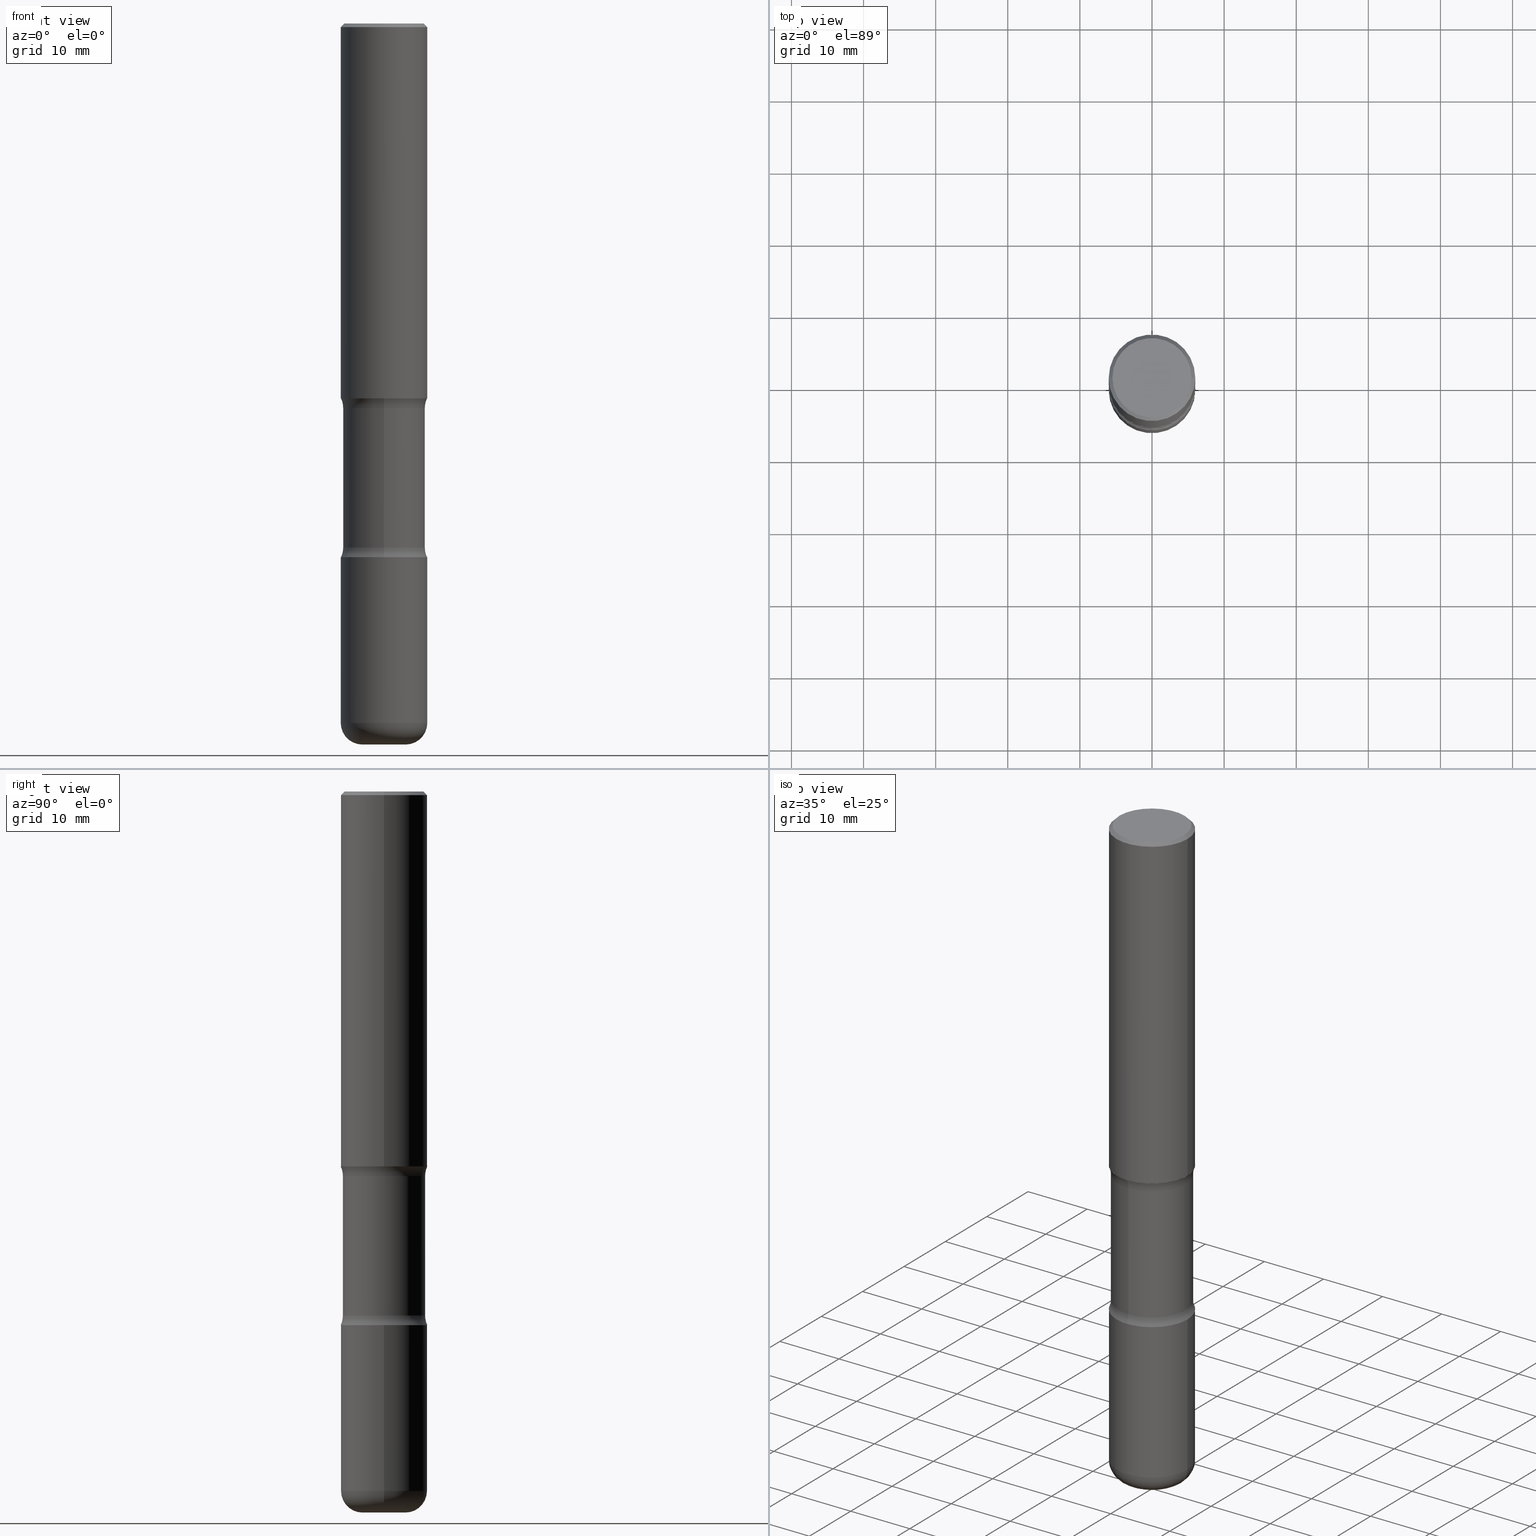
[diagram: canonical four-view strip — front | top / right | iso, engineering-drawing reading convention]
A machine part, canonical four-view strip (front | top / right | iso — engineering-drawing reading convention). The complete STEP part file that produces these views, byte-faithful:
ISO-10303-21;
HEADER;
FILE_DESCRIPTION (( 'STEP AP203' ),
    '1' );
FILE_NAME ('47713.STEP',
    '2024-03-02T07:42:48',
    ( '' ),
    ( '' ),
    'SwSTEP 2.0',
    'SolidWorks 2023',
    '' );
FILE_SCHEMA (( 'CONFIG_CONTROL_DESIGN' ));
ENDSEC;

DATA;
#1 = CC_DESIGN_PERSON_AND_ORGANIZATION_ASSIGNMENT ( #215, #86, ( #98 ) ) ;
#2 = FACE_OUTER_BOUND ( 'NONE', #433, .T. ) ;
#3 = APPLICATION_PROTOCOL_DEFINITION ( 'international standard', 'config_control_design', 1994, #512 ) ;
#4 = DIRECTION ( 'NONE',  ( 1.000000000000000000, -6.982962677686266711E-15, 4.876176775795936353E-29 ) ) ;
#5 = CYLINDRICAL_SURFACE ( 'NONE', #314, 0.2361999999999999933 ) ;
#6 = VERTEX_POINT ( 'NONE', #87 ) ;
#7 = VECTOR ( 'NONE', #421, 39.37007874015748143 ) ;
#8 = APPROVAL_ROLE ( '' ) ;
#9 = CARTESIAN_POINT ( 'NONE',  ( 5.006363740022212241E-29, -7.147760596879688202E-15, -2.047200000000000131 ) ) ;
#10 = VERTEX_POINT ( 'NONE', #490 ) ;
#11 = DATE_TIME_ROLE ( 'creation_date' ) ;
#12 = EDGE_CURVE ( 'NONE', #464, #528, #516, .T. ) ;
#13 = ORIENTED_EDGE ( 'NONE', *, *, #395, .T. ) ;
#14 = PERSON_AND_ORGANIZATION ( #96, #503 ) ;
#15 = AXIS2_PLACEMENT_3D ( 'NONE', #34, #158, #553 ) ;
#16 = AXIS2_PLACEMENT_3D ( 'NONE', #36, #122, #550 ) ;
#17 = CARTESIAN_POINT ( 'NONE',  ( -1.579972688886713168E-15, -0.2244000000000099804, -2.860383398826404466 ) ) ;
#18 = ORIENTED_EDGE ( 'NONE', *, *, #515, .F. ) ;
#19 = ADVANCED_FACE ( 'NONE', ( #483 ), #439, .F. ) ;
#20 = CARTESIAN_POINT ( 'NONE',  ( 4.936620538380257512E-29, -7.247636831167487464E-15, -2.047200000000000131 ) ) ;
#21 = DIRECTION ( 'NONE',  ( 2.445468806185136597E-29, -3.491481338843145583E-15, -1.000000000000000000 ) ) ;
#22 = CARTESIAN_POINT ( 'NONE',  ( 6.994978375559792251E-29, -9.986975258939122984E-15, -2.860383398826405354 ) ) ;
#23 = CARTESIAN_POINT ( 'NONE',  ( 5.070539682259229331E-29, -7.426630284172150130E-15, -2.100216601173595432 ) ) ;
#24 = AXIS2_PLACEMENT_3D ( 'NONE', #186, #270, #404 ) ;
#25 = DIRECTION ( 'NONE',  ( 2.525985086076564115E-29, -3.376177443336566513E-15, -1.000000000000000000 ) ) ;
#26 = LOCAL_TIME ( 2, 42, 48.00000000000000000, #291 ) ;
#27 = ORIENTED_EDGE ( 'NONE', *, *, #472, .F. ) ;
#28 = CARTESIAN_POINT ( 'NONE',  ( 1.509716530915769534E-15, 0.2161999999999998368, -7.527240092128373149E-16 ) ) ;
#29 = EDGE_CURVE ( 'NONE', #339, #135, #155, .T. ) ;
#30 = CYLINDRICAL_SURFACE ( 'NONE', #539, 0.2243999999999999329 ) ;
#31 = DIRECTION ( 'NONE',  ( 1.000000000000000000, -6.982962677686266711E-15, 4.876176775795936353E-29 ) ) ;
#32 = VERTEX_POINT ( 'NONE', #269 ) ;
#33 = AXIS2_PLACEMENT_3D ( 'NONE', #23, #25, #530 ) ;
#34 = CARTESIAN_POINT ( 'NONE',  ( 5.006363740022212241E-29, -7.147760596879688202E-15, -2.047200000000000131 ) ) ;
#35 = EDGE_CURVE ( 'NONE', #76, #531, #405, .T. ) ;
#36 = CARTESIAN_POINT ( 'NONE',  ( -1.043851414335219820E-46, 1.490343170380447200E-32, 4.268512490100411279E-18 ) ) ;
#37 = ORIENTED_EDGE ( 'NONE', *, *, #104, .F. ) ;
#38 = DIRECTION ( 'NONE',  ( 6.982962677686265922E-15, 1.000000000000000000, -3.469747663417773452E-15 ) ) ;
#39 = AXIS2_PLACEMENT_3D ( 'NONE', #139, #318, #359 ) ;
#40 = ORIENTED_EDGE ( 'NONE', *, *, #508, .T. ) ;
#41 = AXIS2_PLACEMENT_3D ( 'NONE', #510, #551, #241 ) ;
#42 = DATE_AND_TIME ( #130, #335 ) ;
#43 = DIRECTION ( 'NONE',  ( 2.525985086076564115E-29, -3.376177443336566513E-15, -1.000000000000000000 ) ) ;
#44 = CARTESIAN_POINT ( 'NONE',  ( 0.000000000000000000, 0.000000000000000000, 0.000000000000000000 ) ) ;
#45 = PERSON_AND_ORGANIZATION ( #96, #503 ) ;
#46 = DIRECTION ( 'NONE',  ( -2.445468806185136877E-29, 3.491481338843145188E-15, 1.000000000000000000 ) ) ;
#47 = EDGE_LOOP ( 'NONE', ( #471, #487, #245, #556 ) ) ;
#48 = CIRCLE ( 'NONE', #441, 0.2362000000000002431 ) ;
#49 = APPROVAL_PERSON_ORGANIZATION ( #520, #182, #90 ) ;
#50 = EDGE_CURVE ( 'NONE', #10, #386, #425, .T. ) ;
#51 = ORIENTED_EDGE ( 'NONE', *, *, #416, .F. ) ;
#52 = PERSON_AND_ORGANIZATION_ROLE ( 'creator' ) ;
#53 = VERTEX_POINT ( 'NONE', #326 ) ;
#54 = SHAPE_DEFINITION_REPRESENTATION ( #153, #368 ) ;
#55 = DIRECTION ( 'NONE',  ( -2.445468806185136597E-29, 3.491481338843145583E-15, 1.000000000000000000 ) ) ;
#56 = EDGE_LOOP ( 'NONE', ( #210, #337, #185, #398 ) ) ;
#57 = CC_DESIGN_DATE_AND_TIME_ASSIGNMENT ( #541, #260, ( #98 ) ) ;
#58 = CIRCLE ( 'NONE', #374, 0.1180999999999999828 ) ;
#59 = AXIS2_PLACEMENT_3D ( 'NONE', #198, #505, #378 ) ;
#60 = DIRECTION ( 'NONE',  ( 2.438088387897960049E-29, -3.491481338843145188E-15, -1.000000000000000000 ) ) ;
#61 = DIRECTION ( 'NONE',  ( -1.000000000000000000, 6.982962677686267499E-15, 0.000000000000000000 ) ) ;
#62 = DIRECTION ( 'NONE',  ( 1.000000000000000000, -6.982962677686266711E-15, 0.000000000000000000 ) ) ;
#63 = FACE_OUTER_BOUND ( 'NONE', #367, .T. ) ;
#64 = CARTESIAN_POINT ( 'NONE',  ( 0.1181000000000002326, -1.457064992326021168E-14, -3.936999999999998945 ) ) ;
#65 = CARTESIAN_POINT ( 'NONE',  ( 4.936620538380257512E-29, -7.247636831167487464E-15, -2.047200000000000131 ) ) ;
#66 = AXIS2_PLACEMENT_3D ( 'NONE', #28, #492, #494 ) ;
#67 = DIRECTION ( 'NONE',  ( 6.982962677686265922E-15, 1.000000000000000000, -3.376177443336566513E-15 ) ) ;
#68 = EDGE_CURVE ( 'NONE', #464, #303, #129, .T. ) ;
#69 = CARTESIAN_POINT ( 'NONE',  ( 9.339000823940415305E-29, -1.333361808490808613E-14, -3.818899999999998851 ) ) ;
#70 = CARTESIAN_POINT ( 'NONE',  ( 0.000000000000000000, 0.000000000000000000, 0.000000000000000000 ) ) ;
#71 = EDGE_CURVE ( 'NONE', #6, #53, #123, .T. ) ;
#72 = DIRECTION ( 'NONE',  ( -6.982962677686264344E-15, -1.000000000000000000, 0.000000000000000000 ) ) ;
#73 = AXIS2_PLACEMENT_3D ( 'NONE', #289, #201, #249 ) ;
#74 = CIRCLE ( 'NONE', #357, 0.2362000000000001321 ) ;
#75 = FACE_OUTER_BOUND ( 'NONE', #475, .T. ) ;
#76 = VERTEX_POINT ( 'NONE', #521 ) ;
#77 = LINE ( 'NONE', #415, #305 ) ;
#78 =( NAMED_UNIT ( * ) PLANE_ANGLE_UNIT ( ) SI_UNIT ( $, .RADIAN. ) );
#79 = CC_DESIGN_PERSON_AND_ORGANIZATION_ASSIGNMENT ( #295, #52, ( #156 ) ) ;
#80 = AXIS2_PLACEMENT_3D ( 'NONE', #454, #495, #4 ) ;
#81 = AXIS2_PLACEMENT_3D ( 'NONE', #264, #21, #61 ) ;
#82 = VERTEX_POINT ( 'NONE', #219 ) ;
#83 = LENGTH_MEASURE_WITH_UNIT ( LENGTH_MEASURE( 0.02539999999999999897 ), #177 );
#84 = DIRECTION ( 'NONE',  ( 1.000000000000000000, -6.982962677686273810E-15, 0.000000000000000000 ) ) ;
#85 = EDGE_CURVE ( 'NONE', #401, #319, #519, .T. ) ;
#86 = PERSON_AND_ORGANIZATION_ROLE ( 'classification_officer' ) ;
#87 = CARTESIAN_POINT ( 'NONE',  ( 0.2161999999999998368, -1.586759460484351002E-15, 4.268512490111238857E-18 ) ) ;
#88 = CIRCLE ( 'NONE', #170, 0.2362000000000001321 ) ;
#89 = LOCAL_TIME ( 2, 42, 48.00000000000000000, #102 ) ;
#90 = APPROVAL_ROLE ( '' ) ;
#91 = APPROVAL_DATE_TIME ( #363, #175 ) ;
#92 = EDGE_CURVE ( 'NONE', #528, #464, #344, .T. ) ;
#93 = CARTESIAN_POINT ( 'NONE',  ( 3.506515449719347614E-28, 2.268176210464327237E-14, -3.936999999999999389 ) ) ;
#94 = DIRECTION ( 'NONE',  ( -2.445468806185136597E-29, 3.491481338843145583E-15, 1.000000000000000000 ) ) ;
#95 = CIRCLE ( 'NONE', #255, 0.2161999999999998368 ) ;
#96 = PERSON ( 'UNSPECIFIED', 'UNSPECIFIED', 'UNSPECIFIED', ('UNSPECIFIED'), ('UNSPECIFIED'), ('UNSPECIFIED') ) ;
#97 = APPROVAL_STATUS ( 'not_yet_approved' ) ;
#98 = SECURITY_CLASSIFICATION ( '', '', #481 ) ;
#99 = MANIFOLD_SOLID_BREP ( 'Body-Move/Copy2[2]', #355 ) ;
#100 = DIRECTION ( 'NONE',  ( -2.525985086076564115E-29, 3.376177443336566513E-15, 1.000000000000000000 ) ) ;
#101 = ORIENTED_EDGE ( 'NONE', *, *, #223, .F. ) ;
#102 = COORDINATED_UNIVERSAL_TIME_OFFSET ( 5, 0, .BEHIND. ) ;
#103 = CARTESIAN_POINT ( 'NONE',  ( 7.124628819939777829E-29, -1.017208173258562247E-14, -2.913400000000000212 ) ) ;
#104 = EDGE_CURVE ( 'NONE', #135, #464, #146, .T. ) ;
#105 = CARTESIAN_POINT ( 'NONE',  ( -2.397058000421320660E-15, -0.3494000000000072048, -2.100216601173594544 ) ) ;
#106 = CIRCLE ( 'NONE', #181, 0.2362000000000001321 ) ;
#107 = FACE_OUTER_BOUND ( 'NONE', #442, .T. ) ;
#108 = CIRCLE ( 'NONE', #461, 0.2362000000000001321 ) ;
#109 = UNCERTAINTY_MEASURE_WITH_UNIT (LENGTH_MEASURE( 1.000000000000000082E-05 ), #351, 'distance_accuracy_value', 'NONE');
#110 = CARTESIAN_POINT ( 'NONE',  ( 7.124628819939777829E-29, -1.017208173258562247E-14, -2.913400000000000212 ) ) ;
#111 = ADVANCED_FACE ( 'NONE', ( #445 ), #432, .T. ) ;
#112 = LINE ( 'NONE', #420, #117 ) ;
#113 = ORIENTED_EDGE ( 'NONE', *, *, #169, .T. ) ;
#114 = DIRECTION ( 'NONE',  ( -2.445468806185136597E-29, 3.491481338843145583E-15, 1.000000000000000000 ) ) ;
#115 = CARTESIAN_POINT ( 'NONE',  ( 5.088323202950023588E-29, -7.401163270367792936E-15, -2.100216601173595432 ) ) ;
#116 = CIRCLE ( 'NONE', #233, 0.1249999999999999029 ) ;
#117 = VECTOR ( 'NONE', #196, 39.37007874015748143 ) ;
#118 = ORIENTED_EDGE ( 'NONE', *, *, #12, .T. ) ;
#119 = LINE ( 'NONE', #333, #559 ) ;
#120 = VERTEX_POINT ( 'NONE', #209 ) ;
#121 = ADVANCED_FACE ( 'NONE', ( #2 ), #5, .T. ) ;
#122 = DIRECTION ( 'NONE',  ( -2.445468806185136597E-29, 3.491481338843145583E-15, 1.000000000000000000 ) ) ;
#123 = LINE ( 'NONE', #306, #450 ) ;
#124 = EDGE_LOOP ( 'NONE', ( #379, #448, #152, #27 ) ) ;
#125 = CARTESIAN_POINT ( 'NONE',  ( 0.000000000000000000, 0.000000000000000000, 0.000000000000000000 ) ) ;
#126 = DIRECTION ( 'NONE',  ( 1.000000000000000000, -6.982962677686267499E-15, 0.000000000000000000 ) ) ;
#127 = CIRCLE ( 'NONE', #33, 0.2243999999999999606 ) ;
#128 = LOCAL_TIME ( 2, 42, 48.00000000000000000, #388 ) ;
#129 = LINE ( 'NONE', #178, #393 ) ;
#130 = CALENDAR_DATE ( 2024, 2, 3 ) ;
#131 = ADVANCED_FACE ( 'NONE', ( #540 ), #191, .T. ) ;
#132 = ORIENTED_EDGE ( 'NONE', *, *, #29, .T. ) ;
#133 = APPROVAL_DATE_TIME ( #42, #237 ) ;
#134 = ORIENTED_EDGE ( 'NONE', *, *, #92, .F. ) ;
#135 = VERTEX_POINT ( 'NONE', #64 ) ;
#136 = AXIS2_PLACEMENT_3D ( 'NONE', #44, #207, #213 ) ;
#137 = AXIS2_PLACEMENT_3D ( 'NONE', #69, #114, #195 ) ;
#138 = ORIENTED_EDGE ( 'NONE', *, *, #304, .F. ) ;
#139 = CARTESIAN_POINT ( 'NONE',  ( 5.070539682259229331E-29, -7.426630284172150130E-15, -2.100216601173595432 ) ) ;
#140 = EDGE_LOOP ( 'NONE', ( #502, #259, #308, #37 ) ) ;
#141 = EDGE_LOOP ( 'NONE', ( #534, #204 ) ) ;
#142 = PLANE ( 'NONE',  #356 ) ;
#143 = EDGE_LOOP ( 'NONE', ( #347, #286, #13, #51 ) ) ;
#144 = DIRECTION ( 'NONE',  ( 1.000000000000000000, -6.982962677686266711E-15, 4.876176775795936353E-29 ) ) ;
#145 = DIRECTION ( 'NONE',  ( -2.445468806185136597E-29, 3.491481338843145583E-15, 1.000000000000000000 ) ) ;
#146 = CIRCLE ( 'NONE', #283, 0.1180999999999999828 ) ;
#147 = AXIS2_PLACEMENT_3D ( 'NONE', #125, #248, #390 ) ;
#148 = FACE_OUTER_BOUND ( 'NONE', #235, .T. ) ;
#149 = PLANE ( 'NONE',  #263 ) ;
#150 = ADVANCED_FACE ( 'NONE', ( #231 ), #149, .F. ) ;
#151 = FACE_OUTER_BOUND ( 'NONE', #143, .T. ) ;
#152 = ORIENTED_EDGE ( 'NONE', *, *, #252, .T. ) ;
#153 = PRODUCT_DEFINITION_SHAPE ( 'NONE', 'NONE',  #156 ) ;
#154 = DIRECTION ( 'NONE',  ( 2.525985086076564115E-29, -3.376177443336566513E-15, -1.000000000000000000 ) ) ;
#155 = CIRCLE ( 'NONE', #412, 0.1181000000000002326 ) ;
#156 = PRODUCT_DEFINITION ( 'UNKNOWN', '', #527, #438 ) ;
#157 = CARTESIAN_POINT ( 'NONE',  ( -0.1181000000000002187, -1.249446711397540556E-14, -3.818899999999998851 ) ) ;
#158 = DIRECTION ( 'NONE',  ( -2.445468806185136597E-29, 3.491481338843145583E-15, 1.000000000000000000 ) ) ;
#159 = DIRECTION ( 'NONE',  ( -1.000000000000000000, 6.982962677686265922E-15, -4.883557194083112340E-29 ) ) ;
#160 = DIRECTION ( 'NONE',  ( 6.982962677686265922E-15, 1.000000000000000000, -2.313165108945183485E-15 ) ) ;
#161 = DIRECTION ( 'NONE',  ( -2.445468806185136597E-29, 3.491481338843145583E-15, 1.000000000000000000 ) ) ;
#162 = AXIS2_PLACEMENT_3D ( 'NONE', #115, #43, #389 ) ;
#163 = ORIENTED_EDGE ( 'NONE', *, *, #229, .T. ) ;
#164 = ADVANCED_FACE ( 'NONE', ( #543 ), #498, .T. ) ;
#165 = FACE_OUTER_BOUND ( 'NONE', #172, .T. ) ;
#166 = PERSON_AND_ORGANIZATION ( #96, #503 ) ;
#167 = DIRECTION ( 'NONE',  ( 1.000000000000000000, -6.982962677686266711E-15, 4.876217060660159599E-29 ) ) ;
#168 = DATE_AND_TIME ( #427, #128 ) ;
#169 = EDGE_CURVE ( 'NONE', #224, #10, #484, .T. ) ;
#170 = AXIS2_PLACEMENT_3D ( 'NONE', #9, #174, #323 ) ;
#171 = APPROVAL_PERSON_ORGANIZATION ( #14, #237, #8 ) ;
#172 = EDGE_LOOP ( 'NONE', ( #446, #132, #309, #134 ) ) ;
#173 = DIRECTION ( 'NONE',  ( 2.525985086076564115E-29, -3.376177443336566513E-15, -1.000000000000000000 ) ) ;
#174 = DIRECTION ( 'NONE',  ( -2.445468806185136597E-29, 3.491481338843145583E-15, 1.000000000000000000 ) ) ;
#175 = APPROVAL ( #97, 'UNSPECIFIED' ) ;
#176 = EDGE_LOOP ( 'NONE', ( #118, #267, #180, #400 ) ) ;
#177 =( LENGTH_UNIT ( ) NAMED_UNIT ( * ) SI_UNIT ( $, .METRE. ) );
#178 = CARTESIAN_POINT ( 'NONE',  ( 0.2362000000000001598, -1.649375784469497314E-15, 1.151752954443000929E-29 ) ) ;
#179 = APPROVAL_STATUS ( 'not_yet_approved' ) ;
#180 = ORIENTED_EDGE ( 'NONE', *, *, #375, .F. ) ;
#181 = AXIS2_PLACEMENT_3D ( 'NONE', #268, #55, #225 ) ;
#182 = APPROVAL ( #514, 'UNSPECIFIED' ) ;
#183 = APPROVAL_PERSON_ORGANIZATION ( #532, #175, #449 ) ;
#184 = FACE_OUTER_BOUND ( 'NONE', #253, .T. ) ;
#185 = ORIENTED_EDGE ( 'NONE', *, *, #472, .T. ) ;
#186 = CARTESIAN_POINT ( 'NONE',  ( 6.990709676060807691E-29, -9.993088279580958225E-15, -2.860383398826405354 ) ) ;
#187 = DIRECTION ( 'NONE',  ( 2.525985086076564115E-29, -3.376177443336566513E-15, -1.000000000000000000 ) ) ;
#188 = DIRECTION ( 'NONE',  ( 1.000000000000000000, -6.860497997771530774E-15, 4.842210945089756248E-29 ) ) ;
#189 = EDGE_CURVE ( 'NONE', #53, #319, #468, .T. ) ;
#190 = AXIS2_PLACEMENT_3D ( 'NONE', #22, #187, #536 ) ;
#191 = CONICAL_SURFACE ( 'NONE', #81, 0.2361999999999998823, 0.7853981633974479459 ) ;
#192 = CIRCLE ( 'NONE', #384, 0.1249999999999999029 ) ;
#193 = DIRECTION ( 'NONE',  ( 2.445468806185136597E-29, -3.491481338843145583E-15, -1.000000000000000000 ) ) ;
#194 = ADVANCED_FACE ( 'NONE', ( #428 ), #217, .F. ) ;
#195 = DIRECTION ( 'NONE',  ( 1.000000000000000000, -6.982962677686266711E-15, 4.883557194083113462E-29 ) ) ;
#196 = DIRECTION ( 'NONE',  ( 2.525985086076564115E-29, -3.376177443336566513E-15, -1.000000000000000000 ) ) ;
#197 = CARTESIAN_POINT ( 'NONE',  ( -2.397058000421302516E-15, -0.3494000000000099249, -2.860383398826404022 ) ) ;
#198 = CARTESIAN_POINT ( 'NONE',  ( 4.890937612370289799E-31, -6.982962677686315028E-17, -0.02000000000000006981 ) ) ;
#199 = CARTESIAN_POINT ( 'NONE',  ( 0.2362000000000002153, -1.498299386937758423E-14, -3.818899999999998851 ) ) ;
#200 = ORIENTED_EDGE ( 'NONE', *, *, #416, .T. ) ;
#201 = DIRECTION ( 'NONE',  ( 2.525985086076564115E-29, -3.376177443336566513E-15, -1.000000000000000000 ) ) ;
#202 = EDGE_CURVE ( 'NONE', #401, #6, #95, .T. ) ;
#203 = ORIENTED_EDGE ( 'NONE', *, *, #71, .F. ) ;
#204 = ORIENTED_EDGE ( 'NONE', *, *, #35, .F. ) ;
#205 = AXIS2_PLACEMENT_3D ( 'NONE', #545, #410, #230 ) ;
#206 = LOCAL_TIME ( 2, 42, 48.00000000000000000, #222 ) ;
#207 = DIRECTION ( 'NONE',  ( -2.445468806185136597E-29, 3.491481338843145583E-15, 1.000000000000000000 ) ) ;
#208 = PERSON_AND_ORGANIZATION ( #96, #503 ) ;
#209 = CARTESIAN_POINT ( 'NONE',  ( 1.649375784469546815E-15, 0.2361999999999930266, -2.047200000000001019 ) ) ;
#210 = ORIENTED_EDGE ( 'NONE', *, *, #50, .F. ) ;
#211 = EDGE_CURVE ( 'NONE', #135, #339, #403, .T. ) ;
#212 = COORDINATED_UNIVERSAL_TIME_OFFSET ( 5, 0, .BEHIND. ) ;
#213 = DIRECTION ( 'NONE',  ( 1.000000000000000000, -6.982962677686266711E-15, 4.876176775795936353E-29 ) ) ;
#214 = ORIENTED_EDGE ( 'NONE', *, *, #479, .T. ) ;
#215 = PERSON_AND_ORGANIZATION ( #96, #503 ) ;
#216 = CLOSED_SHELL ( 'NONE', ( #164, #423, #387, #535, #547, #349 ) ) ;
#217 = TOROIDAL_SURFACE ( 'NONE', #162, 0.3493999999999998218, 0.1249999999999999029 ) ;
#218 = AXIS2_PLACEMENT_3D ( 'NONE', #462, #161, #336 ) ;
#219 = CARTESIAN_POINT ( 'NONE',  ( -1.579972688886734072E-15, -0.2244000000000073713, -2.100216601173594544 ) ) ;
#220 = EDGE_LOOP ( 'NONE', ( #203, #406, #345, #362 ) ) ;
#221 = ORIENTED_EDGE ( 'NONE', *, *, #243, .F. ) ;
#222 = COORDINATED_UNIVERSAL_TIME_OFFSET ( 5, 0, .BEHIND. ) ;
#223 = EDGE_CURVE ( 'NONE', #528, #32, #254, .T. ) ;
#224 = VERTEX_POINT ( 'NONE', #394 ) ;
#225 = DIRECTION ( 'NONE',  ( 1.000000000000000000, -6.982962677686269077E-15, 0.000000000000000000 ) ) ;
#226 = AXIS2_PLACEMENT_3D ( 'NONE', #103, #542, #499 ) ;
#227 = ORIENTED_EDGE ( 'NONE', *, *, #395, .F. ) ;
#228 = PLANE ( 'NONE',  #226 ) ;
#229 = EDGE_CURVE ( 'NONE', #531, #76, #88, .T. ) ;
#230 = DIRECTION ( 'NONE',  ( 6.982962677686265922E-15, 1.000000000000000000, -2.434802133390609421E-15 ) ) ;
#231 = FACE_OUTER_BOUND ( 'NONE', #141, .T. ) ;
#232 = DIRECTION ( 'NONE',  ( 2.525985086076564115E-29, -3.376177443336566513E-15, -1.000000000000000000 ) ) ;
#233 = AXIS2_PLACEMENT_3D ( 'NONE', #105, #188, #361 ) ;
#234 = CARTESIAN_POINT ( 'NONE',  ( 4.890937612370289799E-31, -6.982962677686315028E-17, -0.02000000000000006981 ) ) ;
#235 = EDGE_LOOP ( 'NONE', ( #350, #321 ) ) ;
#236 = CARTESIAN_POINT ( 'NONE',  ( 2.439847159583651160E-15, 0.3493999999999899964, -2.860383398826406243 ) ) ;
#237 = APPROVAL ( #179, 'UNSPECIFIED' ) ;
#238 = DIRECTION ( 'NONE',  ( 1.000000000000000000, -6.982962677686269077E-15, 0.000000000000000000 ) ) ;
#239 = AXIS2_PLACEMENT_3D ( 'NONE', #397, #301, #429 ) ;
#240 = CIRCLE ( 'NONE', #16, 0.2161999999999998368 ) ;
#241 = DIRECTION ( 'NONE',  ( 6.982962677686265922E-15, 1.000000000000000000, -3.376177443336566513E-15 ) ) ;
#242 = ORIENTED_EDGE ( 'NONE', *, *, #479, .F. ) ;
#243 = EDGE_CURVE ( 'NONE', #120, #544, #48, .T. ) ;
#244 = CARTESIAN_POINT ( 'NONE',  ( -0.2161999999999998368, 1.544631344304201183E-15, 4.268512490089730842E-18 ) ) ;
#245 = ORIENTED_EDGE ( 'NONE', *, *, #265, .F. ) ;
#246 = DIRECTION ( 'NONE',  ( -6.982962677686266711E-15, -1.000000000000000000, 0.000000000000000000 ) ) ;
#247 = CARTESIAN_POINT ( 'NONE',  ( -1.043851414335219820E-46, 1.490343170380447200E-32, 4.268512490100411279E-18 ) ) ;
#248 = DIRECTION ( 'NONE',  ( 0.000000000000000000, 0.000000000000000000, 1.000000000000000000 ) ) ;
#249 = DIRECTION ( 'NONE',  ( 6.982962677686265922E-15, 1.000000000000000000, -2.313165108945183485E-15 ) ) ;
#250 = AXIS2_PLACEMENT_3D ( 'NONE', #93, #60, #407 ) ;
#251 = CC_DESIGN_APPROVAL ( #175, ( #98 ) ) ;
#252 = EDGE_CURVE ( 'NONE', #386, #287, #418, .T. ) ;
#253 = EDGE_LOOP ( 'NONE', ( #392, #480 ) ) ;
#254 = LINE ( 'NONE', #436, #501 ) ;
#255 = AXIS2_PLACEMENT_3D ( 'NONE', #247, #297, #167 ) ;
#256 = ORIENTED_EDGE ( 'NONE', *, *, #189, .T. ) ;
#257 = ADVANCED_FACE ( 'NONE', ( #63 ), #409, .F. ) ;
#258 = CARTESIAN_POINT ( 'NONE',  ( -0.2361999999999998823, 1.579546157692632438E-15, -0.02000000000000006981 ) ) ;
#259 = ORIENTED_EDGE ( 'NONE', *, *, #411, .T. ) ;
#260 = DATE_TIME_ROLE ( 'classification_date' ) ;
#261 = ORIENTED_EDGE ( 'NONE', *, *, #455, .F. ) ;
#262 = DIRECTION ( 'NONE',  ( 2.525985086076564115E-29, -3.376177443336566513E-15, -1.000000000000000000 ) ) ;
#263 = AXIS2_PLACEMENT_3D ( 'NONE', #496, #271, #457 ) ;
#264 = CARTESIAN_POINT ( 'NONE',  ( 4.890937612370289799E-31, -6.982962677686315028E-17, -0.02000000000000006981 ) ) ;
#265 = EDGE_CURVE ( 'NONE', #287, #386, #491, .T. ) ;
#266 = CC_DESIGN_APPROVAL ( #182, ( #156 ) ) ;
#267 = ORIENTED_EDGE ( 'NONE', *, *, #223, .T. ) ;
#268 = CARTESIAN_POINT ( 'NONE',  ( 7.124628819939777829E-29, -1.017208173258562247E-14, -2.913400000000000212 ) ) ;
#269 = CARTESIAN_POINT ( 'NONE',  ( -0.2362000000000001321, -1.007454796688149554E-14, -2.913400000000000212 ) ) ;
#270 = DIRECTION ( 'NONE',  ( 2.525985086076564115E-29, -3.376177443336566513E-15, -1.000000000000000000 ) ) ;
#271 = DIRECTION ( 'NONE',  ( -2.438088387897960049E-29, 3.491481338843145188E-15, 1.000000000000000000 ) ) ;
#272 = DIRECTION ( 'NONE',  ( 2.525985086076564115E-29, -3.376177443336566513E-15, -1.000000000000000000 ) ) ;
#273 = AXIS2_PLACEMENT_3D ( 'NONE', #474, #381, #126 ) ;
#274 = PRODUCT ( '47713', '47713', '', ( #443 ) ) ;
#275 = CIRCLE ( 'NONE', #59, 0.2361999999999998823 ) ;
#276 = CARTESIAN_POINT ( 'NONE',  ( 7.124628819939777829E-29, -1.017208173258562247E-14, -2.913400000000000212 ) ) ;
#277 = CC_DESIGN_PERSON_AND_ORGANIZATION_ASSIGNMENT ( #45, #525, ( #274 ) ) ;
#278 = ORIENTED_EDGE ( 'NONE', *, *, #189, .F. ) ;
#279 = FACE_OUTER_BOUND ( 'NONE', #517, .T. ) ;
#280 = FACE_OUTER_BOUND ( 'NONE', #56, .T. ) ;
#281 = EDGE_CURVE ( 'NONE', #377, #82, #127, .T. ) ;
#282 = MANIFOLD_SOLID_BREP ( 'Body-Move/Copy2[4]', #537 ) ;
#283 = AXIS2_PLACEMENT_3D ( 'NONE', #342, #482, #84 ) ;
#284 =( GEOMETRIC_REPRESENTATION_CONTEXT ( 3 ) GLOBAL_UNCERTAINTY_ASSIGNED_CONTEXT ( ( #109 ) ) GLOBAL_UNIT_ASSIGNED_CONTEXT ( ( #351, #78, #341 ) ) REPRESENTATION_CONTEXT ( 'NONE', 'WORKASPACE' ) );
#285 = DIRECTION ( 'NONE',  ( 7.105427357601001859E-15, 1.000000000000000000, -3.491481338843145583E-15 ) ) ;
#286 = ORIENTED_EDGE ( 'NONE', *, *, #304, .T. ) ;
#287 = VERTEX_POINT ( 'NONE', #451 ) ;
#288 = DIRECTION ( 'NONE',  ( -2.445468806185136877E-29, 3.491481338843145188E-15, 1.000000000000000000 ) ) ;
#289 = CARTESIAN_POINT ( 'NONE',  ( 7.124628819939777829E-29, -1.017208173258562247E-14, -2.913400000000000212 ) ) ;
#290 = DIRECTION ( 'NONE',  ( 6.860497997771529985E-15, 1.000000000000000000, 0.000000000000000000 ) ) ;
#291 = COORDINATED_UNIVERSAL_TIME_OFFSET ( 5, 0, .BEHIND. ) ;
#292 = ORIENTED_EDGE ( 'NONE', *, *, #524, .T. ) ;
#293 = CC_DESIGN_PERSON_AND_ORGANIZATION_ASSIGNMENT ( #208, #354, ( #527 ) ) ;
#294 = ORIENTED_EDGE ( 'NONE', *, *, #252, .F. ) ;
#295 = PERSON_AND_ORGANIZATION ( #96, #503 ) ;
#296 = AXIS2_PLACEMENT_3D ( 'NONE', #65, #262, #38 ) ;
#297 = DIRECTION ( 'NONE',  ( -2.445468806185136597E-29, 3.491481338843145583E-15, 1.000000000000000000 ) ) ;
#298 = DIRECTION ( 'NONE',  ( -0.7071067811865472397, 2.468850131082253905E-15, -0.7071067811865477948 ) ) ;
#299 = PERSON_AND_ORGANIZATION_ROLE ( 'creator' ) ;
#300 = DIRECTION ( 'NONE',  ( 1.000000000000000000, -6.982962677686275388E-15, 0.000000000000000000 ) ) ;
#301 = DIRECTION ( 'NONE',  ( -2.445468806185136597E-29, 3.491481338843145583E-15, 1.000000000000000000 ) ) ;
#302 = ORIENTED_EDGE ( 'NONE', *, *, #515, .T. ) ;
#303 = VERTEX_POINT ( 'NONE', #313 ) ;
#304 = EDGE_CURVE ( 'NONE', #82, #544, #116, .T. ) ;
#305 = VECTOR ( 'NONE', #560, 39.37007874015748143 ) ;
#306 = CARTESIAN_POINT ( 'NONE',  ( 0.2361999999999998823, -1.690279253850498179E-15, -0.02000000000000006981 ) ) ;
#307 = ORIENTED_EDGE ( 'NONE', *, *, #508, .F. ) ;
#308 = ORIENTED_EDGE ( 'NONE', *, *, #12, .F. ) ;
#309 = ORIENTED_EDGE ( 'NONE', *, *, #104, .T. ) ;
#310 = CARTESIAN_POINT ( 'NONE',  ( -0.1181000000000002326, -1.228106360156775550E-14, -3.936999999999998945 ) ) ;
#311 = ADVANCED_FACE ( 'NONE', ( #364 ), #507, .T. ) ;
#312 = CARTESIAN_POINT ( 'NONE',  ( 9.339000823940415305E-29, -1.333361808490808613E-14, -3.818899999999998851 ) ) ;
#313 = CARTESIAN_POINT ( 'NONE',  ( 0.2362000000000001321, -1.182145751705511899E-14, -2.913400000000000212 ) ) ;
#314 = AXIS2_PLACEMENT_3D ( 'NONE', #360, #489, #144 ) ;
#315 = DIRECTION ( 'NONE',  ( 1.000000000000000000, -6.982962677686275388E-15, 0.000000000000000000 ) ) ;
#316 = CIRCLE ( 'NONE', #419, 0.1250000000000000000 ) ;
#317 = PLANE ( 'NONE',  #66 ) ;
#318 = DIRECTION ( 'NONE',  ( 2.525985086076564115E-29, -3.376177443336566513E-15, -1.000000000000000000 ) ) ;
#319 = VERTEX_POINT ( 'NONE', #538 ) ;
#320 = ADVANCED_FACE ( 'NONE', ( #148 ), #317, .F. ) ;
#321 = ORIENTED_EDGE ( 'NONE', *, *, #447, .T. ) ;
#322 = DIMENSIONAL_EXPONENTS ( 1.000000000000000000, 0.000000000000000000, 0.000000000000000000, 0.000000000000000000, 0.000000000000000000, 0.000000000000000000, 0.000000000000000000 ) ;
#323 = DIRECTION ( 'NONE',  ( 1.000000000000000000, -6.982962677686269077E-15, 0.000000000000000000 ) ) ;
#324 = ORIENTED_EDGE ( 'NONE', *, *, #92, .T. ) ;
#325 = AXIS2_PLACEMENT_3D ( 'NONE', #312, #94, #62 ) ;
#326 = CARTESIAN_POINT ( 'NONE',  ( 0.2361999999999998823, -1.690279253850498179E-15, -0.02000000000000006981 ) ) ;
#327 = ORIENTED_EDGE ( 'NONE', *, *, #35, .T. ) ;
#328 = VECTOR ( 'NONE', #298, 39.37007874015748143 ) ;
#329 = AXIS2_PLACEMENT_3D ( 'NONE', #348, #173, #440 ) ;
#330 = CARTESIAN_POINT ( 'NONE',  ( -0.2362000000000002153, -1.165531614304272658E-14, -3.818899999999998851 ) ) ;
#331 = DIRECTION ( 'NONE',  ( 6.982962677686265922E-15, 1.000000000000000000, -2.434802133390609815E-15 ) ) ;
#332 = ADVANCED_FACE ( 'NONE', ( #151 ), #383, .F. ) ;
#333 = CARTESIAN_POINT ( 'NONE',  ( 0.2361999999999999933, -1.649375784469496131E-15, 1.151752954443000088E-29 ) ) ;
#334 = AXIS2_PLACEMENT_3D ( 'NONE', #459, #232, #67 ) ;
#335 = LOCAL_TIME ( 2, 42, 48.00000000000000000, #212 ) ;
#336 = DIRECTION ( 'NONE',  ( 1.000000000000000000, -6.982962677686266711E-15, 4.883557194083113462E-29 ) ) ;
#337 = ORIENTED_EDGE ( 'NONE', *, *, #169, .F. ) ;
#338 = DIRECTION ( 'NONE',  ( 0.7071067811865472397, -7.319954787623254468E-15, -0.7071067811865477948 ) ) ;
#339 = VERTEX_POINT ( 'NONE', #310 ) ;
#340 = CC_DESIGN_DATE_AND_TIME_ASSIGNMENT ( #518, #11, ( #156 ) ) ;
#341 =( NAMED_UNIT ( * ) SI_UNIT ( $, .STERADIAN. ) SOLID_ANGLE_UNIT ( ) );
#342 = CARTESIAN_POINT ( 'NONE',  ( 0.1181000000000002187, -1.415830597714283439E-14, -3.818899999999998851 ) ) ;
#343 = FACE_OUTER_BOUND ( 'NONE', #47, .T. ) ;
#344 = CIRCLE ( 'NONE', #239, 0.2362000000000002153 ) ;
#345 = ORIENTED_EDGE ( 'NONE', *, *, #85, .T. ) ;
#346 = TOROIDAL_SURFACE ( 'NONE', #218, 0.1181000000000002187, 0.1180999999999999966 ) ;
#347 = ORIENTED_EDGE ( 'NONE', *, *, #358, .F. ) ;
#348 = CARTESIAN_POINT ( 'NONE',  ( 9.710227154047748282E-29, -1.362793696358492956E-14, -3.937000000000000277 ) ) ;
#349 = ADVANCED_FACE ( 'NONE', ( #533 ), #228, .F. ) ;
#350 = ORIENTED_EDGE ( 'NONE', *, *, #202, .T. ) ;
#351 =( CONVERSION_BASED_UNIT ( 'INCH', #83 ) LENGTH_UNIT ( ) NAMED_UNIT ( #322 ) );
#352 = DIRECTION ( 'NONE',  ( -2.445468806185136877E-29, 3.491481338843145188E-15, 1.000000000000000000 ) ) ;
#353 = EDGE_LOOP ( 'NONE', ( #138, #466, #200, #452 ) ) ;
#354 = PERSON_AND_ORGANIZATION_ROLE ( 'design_supplier' ) ;
#355 = CLOSED_SHELL ( 'NONE', ( #121, #131, #311, #320, #150, #111 ) ) ;
#356 = AXIS2_PLACEMENT_3D ( 'NONE', #276, #100, #456 ) ;
#357 = AXIS2_PLACEMENT_3D ( 'NONE', #385, #380, #160 ) ;
#358 = EDGE_CURVE ( 'NONE', #82, #377, #526, .T. ) ;
#359 = DIRECTION ( 'NONE',  ( 6.982962677686265922E-15, 1.000000000000000000, -3.652203200085913934E-15 ) ) ;
#360 = CARTESIAN_POINT ( 'NONE',  ( 0.000000000000000000, 0.000000000000000000, 0.000000000000000000 ) ) ;
#361 = DIRECTION ( 'NONE',  ( 6.860497997771531562E-15, 1.000000000000000000, 0.000000000000000000 ) ) ;
#362 = ORIENTED_EDGE ( 'NONE', *, *, #455, .T. ) ;
#363 = DATE_AND_TIME ( #529, #89 ) ;
#364 = FACE_OUTER_BOUND ( 'NONE', #220, .T. ) ;
#365 = AXIS2_PLACEMENT_3D ( 'NONE', #197, #558, #290 ) ;
#366 = ORIENTED_EDGE ( 'NONE', *, *, #463, .F. ) ;
#367 = EDGE_LOOP ( 'NONE', ( #221, #227 ) ) ;
#368 = ADVANCED_BREP_SHAPE_REPRESENTATION ( '47713', ( #476, #99, #282, #147 ), #284 ) ;
#369 = CARTESIAN_POINT ( 'NONE',  ( 5.088323202950023588E-29, -7.401163270367792936E-15, -2.100216601173595432 ) ) ;
#370 = EDGE_LOOP ( 'NONE', ( #500, #302 ) ) ;
#371 = ADVANCED_FACE ( 'NONE', ( #107 ), #142, .F. ) ;
#372 = DIRECTION ( 'NONE',  ( 6.982962677686265922E-15, 1.000000000000000000, -3.469747663417773452E-15 ) ) ;
#373 = FACE_OUTER_BOUND ( 'NONE', #140, .T. ) ;
#374 = AXIS2_PLACEMENT_3D ( 'NONE', #157, #285, #470 ) ;
#375 = EDGE_CURVE ( 'NONE', #303, #32, #106, .T. ) ;
#376 = DIRECTION ( 'NONE',  ( -1.000000000000000000, 6.982962677686265922E-15, -4.883557194083112340E-29 ) ) ;
#377 = VERTEX_POINT ( 'NONE', #488 ) ;
#378 = DIRECTION ( 'NONE',  ( 1.000000000000000000, -6.982962677686267499E-15, 0.000000000000000000 ) ) ;
#379 = ORIENTED_EDGE ( 'NONE', *, *, #493, .F. ) ;
#380 = DIRECTION ( 'NONE',  ( 2.525985086076564115E-29, -3.376177443336566513E-15, -1.000000000000000000 ) ) ;
#381 = DIRECTION ( 'NONE',  ( -2.445468806185136597E-29, 3.491481338843145583E-15, 1.000000000000000000 ) ) ;
#382 = ORIENTED_EDGE ( 'NONE', *, *, #447, .F. ) ;
#383 = TOROIDAL_SURFACE ( 'NONE', #460, 0.3493999999999998218, 0.1249999999999999029 ) ;
#384 = AXIS2_PLACEMENT_3D ( 'NONE', #422, #159, #72 ) ;
#385 = CARTESIAN_POINT ( 'NONE',  ( 7.124628819939777829E-29, -1.017208173258562247E-14, -2.913400000000000212 ) ) ;
#386 = VERTEX_POINT ( 'NONE', #17 ) ;
#387 = ADVANCED_FACE ( 'NONE', ( #184 ), #453, .T. ) ;
#388 = COORDINATED_UNIVERSAL_TIME_OFFSET ( 5, 0, .BEHIND. ) ;
#389 = DIRECTION ( 'NONE',  ( 6.982962677686265922E-15, 1.000000000000000000, -3.376177443336566513E-15 ) ) ;
#390 = DIRECTION ( 'NONE',  ( 1.000000000000000000, 0.000000000000000000, 0.000000000000000000 ) ) ;
#391 = DIRECTION ( 'NONE',  ( -2.445468806185136597E-29, 3.491481338843145583E-15, 1.000000000000000000 ) ) ;
#392 = ORIENTED_EDGE ( 'NONE', *, *, #211, .F. ) ;
#393 = VECTOR ( 'NONE', #352, 39.37007874015748143 ) ;
#394 = CARTESIAN_POINT ( 'NONE',  ( 1.649375784469567917E-15, 0.2361999999999899458, -2.913400000000000656 ) ) ;
#395 = EDGE_CURVE ( 'NONE', #544, #120, #549, .T. ) ;
#396 = AXIS2_PLACEMENT_3D ( 'NONE', #70, #417, #31 ) ;
#397 = CARTESIAN_POINT ( 'NONE',  ( 9.339000823940415305E-29, -1.333361808490808613E-14, -3.818899999999998851 ) ) ;
#398 = ORIENTED_EDGE ( 'NONE', *, *, #265, .T. ) ;
#399 = APPROVAL_DATE_TIME ( #168, #182 ) ;
#400 = ORIENTED_EDGE ( 'NONE', *, *, #68, .F. ) ;
#401 = VERTEX_POINT ( 'NONE', #244 ) ;
#402 = CC_DESIGN_PERSON_AND_ORGANIZATION_ASSIGNMENT ( #166, #299, ( #527 ) ) ;
#403 = CIRCLE ( 'NONE', #478, 0.1181000000000002326 ) ;
#404 = DIRECTION ( 'NONE',  ( 6.982962677686265922E-15, 1.000000000000000000, -2.434802133390609421E-15 ) ) ;
#405 = CIRCLE ( 'NONE', #15, 0.2362000000000001321 ) ;
#406 = ORIENTED_EDGE ( 'NONE', *, *, #202, .F. ) ;
#407 = DIRECTION ( 'NONE',  ( -1.000000000000000000, 6.982962677686265922E-15, -4.876176775795935793E-29 ) ) ;
#408 = CARTESIAN_POINT ( 'NONE',  ( 9.627810689950880306E-29, -1.374596203102546026E-14, -3.936999999999998945 ) ) ;
#409 = PLANE ( 'NONE',  #334 ) ;
#410 = DIRECTION ( 'NONE',  ( 2.525985086076564115E-29, -3.376177443336566513E-15, -1.000000000000000000 ) ) ;
#411 = EDGE_CURVE ( 'NONE', #339, #528, #58, .T. ) ;
#412 = AXIS2_PLACEMENT_3D ( 'NONE', #408, #145, #315 ) ;
#413 = CC_DESIGN_SECURITY_CLASSIFICATION ( #98, ( #527 ) ) ;
#414 = DIRECTION ( 'NONE',  ( -1.000000000000000000, 6.982962677686267499E-15, 0.000000000000000000 ) ) ;
#415 = CARTESIAN_POINT ( 'NONE',  ( 1.566976824872894642E-15, 0.2243999999999863049, -3.937000000000000721 ) ) ;
#416 = EDGE_CURVE ( 'NONE', #377, #120, #192, .T. ) ;
#417 = DIRECTION ( 'NONE',  ( -2.445468806185136597E-29, 3.491481338843145583E-15, 1.000000000000000000 ) ) ;
#418 = CIRCLE ( 'NONE', #24, 0.2243999999999999606 ) ;
#419 = AXIS2_PLACEMENT_3D ( 'NONE', #236, #376, #246 ) ;
#420 = CARTESIAN_POINT ( 'NONE',  ( -1.539495750699834052E-15, -0.2244000000000135608, -3.936999999999999389 ) ) ;
#421 = DIRECTION ( 'NONE',  ( -2.445468806185136877E-29, 3.491481338843145188E-15, 1.000000000000000000 ) ) ;
#422 = CARTESIAN_POINT ( 'NONE',  ( 2.439847159583631044E-15, 0.3493999999999924388, -2.100216601173596320 ) ) ;
#423 = ADVANCED_FACE ( 'NONE', ( #373 ), #346, .T. ) ;
#424 = ORIENTED_EDGE ( 'NONE', *, *, #493, .T. ) ;
#425 = CIRCLE ( 'NONE', #365, 0.1250000000000000000 ) ;
#426 = CC_DESIGN_APPROVAL ( #237, ( #527 ) ) ;
#427 = CALENDAR_DATE ( 2024, 2, 3 ) ;
#428 = FACE_OUTER_BOUND ( 'NONE', #353, .T. ) ;
#429 = DIRECTION ( 'NONE',  ( 1.000000000000000000, -6.982962677686266711E-15, 0.000000000000000000 ) ) ;
#430 = CALENDAR_DATE ( 2024, 2, 3 ) ;
#431 = CARTESIAN_POINT ( 'NONE',  ( 9.627810689950880306E-29, -1.374596203102546026E-14, -3.936999999999998945 ) ) ;
#432 = CYLINDRICAL_SURFACE ( 'NONE', #136, 0.2361999999999999933 ) ;
#433 = EDGE_LOOP ( 'NONE', ( #163, #214, #278, #307 ) ) ;
#434 = ADVANCED_FACE ( 'NONE', ( #75 ), #30, .T. ) ;
#435 = APPLICATION_PROTOCOL_DEFINITION ( 'international standard', 'config_control_design', 1994, #485 ) ;
#436 = CARTESIAN_POINT ( 'NONE',  ( -0.2362000000000001598, 1.678301941865357775E-15, -1.161852468318209598E-29 ) ) ;
#437 = ORIENTED_EDGE ( 'NONE', *, *, #358, .T. ) ;
#438 = DESIGN_CONTEXT ( 'detailed design', #512, 'design' ) ;
#439 = TOROIDAL_SURFACE ( 'NONE', #190, 0.3493999999999999884, 0.1250000000000000000 ) ;
#440 = DIRECTION ( 'NONE',  ( 6.982962677686265922E-15, 1.000000000000000000, -2.434802133390609815E-15 ) ) ;
#441 = AXIS2_PLACEMENT_3D ( 'NONE', #20, #272, #372 ) ;
#442 = EDGE_LOOP ( 'NONE', ( #113, #424 ) ) ;
#443 = MECHANICAL_CONTEXT ( 'NONE', #485, 'mechanical' ) ;
#444 = ORIENTED_EDGE ( 'NONE', *, *, #85, .F. ) ;
#445 = FACE_OUTER_BOUND ( 'NONE', #546, .T. ) ;
#446 = ORIENTED_EDGE ( 'NONE', *, *, #411, .F. ) ;
#447 = EDGE_CURVE ( 'NONE', #6, #401, #240, .T. ) ;
#448 = ORIENTED_EDGE ( 'NONE', *, *, #50, .T. ) ;
#449 = APPROVAL_ROLE ( '' ) ;
#450 = VECTOR ( 'NONE', #338, 39.37007874015748143 ) ;
#451 = CARTESIAN_POINT ( 'NONE',  ( 1.566976824872867821E-15, 0.2243999999999899686, -2.860383398826405799 ) ) ;
#452 = ORIENTED_EDGE ( 'NONE', *, *, #243, .T. ) ;
#453 = PLANE ( 'NONE',  #250 ) ;
#454 = CARTESIAN_POINT ( 'NONE',  ( 0.000000000000000000, 0.000000000000000000, 0.000000000000000000 ) ) ;
#455 = EDGE_CURVE ( 'NONE', #319, #53, #275, .T. ) ;
#456 = DIRECTION ( 'NONE',  ( -6.982962677686265922E-15, -1.000000000000000000, 3.376177443336566513E-15 ) ) ;
#457 = DIRECTION ( 'NONE',  ( 1.000000000000000000, -6.982962677686265922E-15, 4.876176775795935793E-29 ) ) ;
#458 = PRODUCT_RELATED_PRODUCT_CATEGORY ( 'detail', '', ( #274 ) ) ;
#459 = CARTESIAN_POINT ( 'NONE',  ( 5.006363740022212241E-29, -7.147760596879688202E-15, -2.047200000000000131 ) ) ;
#460 = AXIS2_PLACEMENT_3D ( 'NONE', #369, #154, #497 ) ;
#461 = AXIS2_PLACEMENT_3D ( 'NONE', #110, #473, #238 ) ;
#462 = CARTESIAN_POINT ( 'NONE',  ( 9.339000823940415305E-29, -1.333361808490808613E-14, -3.818899999999998851 ) ) ;
#463 = EDGE_CURVE ( 'NONE', #82, #386, #112, .T. ) ;
#464 = VERTEX_POINT ( 'NONE', #199 ) ;
#465 = CYLINDRICAL_SURFACE ( 'NONE', #396, 0.2362000000000001598 ) ;
#466 = ORIENTED_EDGE ( 'NONE', *, *, #281, .F. ) ;
#467 = DIRECTION ( 'NONE',  ( 2.525985086076564115E-29, -3.376177443336566513E-15, -1.000000000000000000 ) ) ;
#468 = CIRCLE ( 'NONE', #273, 0.2361999999999998823 ) ;
#469 = TOROIDAL_SURFACE ( 'NONE', #41, 0.3493999999999999884, 0.1250000000000000000 ) ;
#470 = DIRECTION ( 'NONE',  ( -1.000000000000000000, 7.105427357601005014E-15, 0.000000000000000000 ) ) ;
#471 = ORIENTED_EDGE ( 'NONE', *, *, #281, .T. ) ;
#472 = EDGE_CURVE ( 'NONE', #224, #287, #316, .T. ) ;
#473 = DIRECTION ( 'NONE',  ( -2.445468806185136597E-29, 3.491481338843145583E-15, 1.000000000000000000 ) ) ;
#474 = CARTESIAN_POINT ( 'NONE',  ( 4.890937612370289799E-31, -6.982962677686315028E-17, -0.02000000000000006981 ) ) ;
#475 = EDGE_LOOP ( 'NONE', ( #366, #437, #292, #294 ) ) ;
#476 = MANIFOLD_SOLID_BREP ( 'Body-Move/Copy2[1]', #216 ) ;
#477 = CALENDAR_DATE ( 2024, 2, 3 ) ;
#478 = AXIS2_PLACEMENT_3D ( 'NONE', #431, #391, #300 ) ;
#479 = EDGE_CURVE ( 'NONE', #76, #319, #555, .T. ) ;
#480 = ORIENTED_EDGE ( 'NONE', *, *, #29, .F. ) ;
#481 = SECURITY_CLASSIFICATION_LEVEL ( 'unclassified' ) ;
#482 = DIRECTION ( 'NONE',  ( -6.982962677686266711E-15, -1.000000000000000000, 3.491481338843145583E-15 ) ) ;
#483 = FACE_OUTER_BOUND ( 'NONE', #124, .T. ) ;
#484 = CIRCLE ( 'NONE', #73, 0.2362000000000001321 ) ;
#485 = APPLICATION_CONTEXT ( 'configuration controlled 3d designs of mechanical parts and assemblies' ) ;
#486 = ADVANCED_FACE ( 'NONE', ( #280 ), #469, .F. ) ;
#487 = ORIENTED_EDGE ( 'NONE', *, *, #463, .T. ) ;
#488 = CARTESIAN_POINT ( 'NONE',  ( 1.566976824872848494E-15, 0.2243999999999925499, -2.100216601173596320 ) ) ;
#489 = DIRECTION ( 'NONE',  ( -2.445468806185136597E-29, 3.491481338843145583E-15, 1.000000000000000000 ) ) ;
#490 = CARTESIAN_POINT ( 'NONE',  ( -1.620449627073565067E-15, -0.2362000000000102629, -2.913399999999999768 ) ) ;
#491 = CIRCLE ( 'NONE', #205, 0.2243999999999999606 ) ;
#492 = DIRECTION ( 'NONE',  ( 2.438088387897960049E-29, -3.491481338843145188E-15, -1.000000000000000000 ) ) ;
#493 = EDGE_CURVE ( 'NONE', #10, #224, #74, .T. ) ;
#494 = DIRECTION ( 'NONE',  ( -1.000000000000000000, 6.982962677686265922E-15, -4.876176775795935793E-29 ) ) ;
#495 = DIRECTION ( 'NONE',  ( -2.445468806185136597E-29, 3.491481338843145583E-15, 1.000000000000000000 ) ) ;
#496 = CARTESIAN_POINT ( 'NONE',  ( 5.006363740022212241E-29, -7.147760596879688202E-15, -2.047200000000000131 ) ) ;
#497 = DIRECTION ( 'NONE',  ( 6.982962677686265922E-15, 1.000000000000000000, -3.376177443336566513E-15 ) ) ;
#498 = CYLINDRICAL_SURFACE ( 'NONE', #80, 0.2362000000000001598 ) ;
#499 = DIRECTION ( 'NONE',  ( -1.000000000000000000, 6.982962677686265922E-15, -4.876176775795935793E-29 ) ) ;
#500 = ORIENTED_EDGE ( 'NONE', *, *, #375, .T. ) ;
#501 = VECTOR ( 'NONE', #46, 39.37007874015748143 ) ;
#502 = ORIENTED_EDGE ( 'NONE', *, *, #211, .T. ) ;
#503 = ORGANIZATION ( 'UNSPECIFIED', 'UNSPECIFIED', '' ) ;
#504 = CARTESIAN_POINT ( 'NONE',  ( 9.710227154047748282E-29, -1.362793696358492956E-14, -3.937000000000000277 ) ) ;
#505 = DIRECTION ( 'NONE',  ( -2.445468806185136597E-29, 3.491481338843145583E-15, 1.000000000000000000 ) ) ;
#506 = CARTESIAN_POINT ( 'NONE',  ( 0.2362000000000001321, -8.797136381349186305E-15, -2.047200000000000131 ) ) ;
#507 = CONICAL_SURFACE ( 'NONE', #557, 0.2361999999999998823, 0.7853981633974479459 ) ;
#508 = EDGE_CURVE ( 'NONE', #531, #53, #119, .T. ) ;
#509 = TOROIDAL_SURFACE ( 'NONE', #137, 0.1181000000000002187, 0.1180999999999999966 ) ;
#510 = CARTESIAN_POINT ( 'NONE',  ( 6.994978375559792251E-29, -9.986975258939122984E-15, -2.860383398826405354 ) ) ;
#511 = ORIENTED_EDGE ( 'NONE', *, *, #68, .T. ) ;
#512 = APPLICATION_CONTEXT ( 'configuration controlled 3d designs of mechanical parts and assemblies' ) ;
#513 = CARTESIAN_POINT ( 'NONE',  ( -1.620449627073587747E-15, -0.2362000000000074318, -2.047199999999999243 ) ) ;
#514 = APPROVAL_STATUS ( 'not_yet_approved' ) ;
#515 = EDGE_CURVE ( 'NONE', #32, #303, #108, .T. ) ;
#516 = CIRCLE ( 'NONE', #325, 0.2362000000000002153 ) ;
#517 = EDGE_LOOP ( 'NONE', ( #101, #324, #511, #18 ) ) ;
#518 = DATE_AND_TIME ( #430, #206 ) ;
#519 = LINE ( 'NONE', #258, #328 ) ;
#520 = PERSON_AND_ORGANIZATION ( #96, #503 ) ;
#521 = CARTESIAN_POINT ( 'NONE',  ( -0.2362000000000001598, -1.930493169962915017E-15, -2.047200000000000131 ) ) ;
#522 = CYLINDRICAL_SURFACE ( 'NONE', #329, 0.2243999999999999329 ) ;
#523 = ORIENTED_EDGE ( 'NONE', *, *, #71, .T. ) ;
#524 = EDGE_CURVE ( 'NONE', #377, #287, #77, .T. ) ;
#525 = PERSON_AND_ORGANIZATION_ROLE ( 'design_owner' ) ;
#526 = CIRCLE ( 'NONE', #39, 0.2243999999999999606 ) ;
#527 = PRODUCT_DEFINITION_FORMATION_WITH_SPECIFIED_SOURCE ( 'ANY', '', #274, .NOT_KNOWN. ) ;
#528 = VERTEX_POINT ( 'NONE', #330 ) ;
#529 = CALENDAR_DATE ( 2024, 2, 3 ) ;
#530 = DIRECTION ( 'NONE',  ( 6.982962677686265922E-15, 1.000000000000000000, -3.652203200085913934E-15 ) ) ;
#531 = VERTEX_POINT ( 'NONE', #506 ) ;
#532 = PERSON_AND_ORGANIZATION ( #96, #503 ) ;
#533 = FACE_OUTER_BOUND ( 'NONE', #370, .T. ) ;
#534 = ORIENTED_EDGE ( 'NONE', *, *, #229, .F. ) ;
#535 = ADVANCED_FACE ( 'NONE', ( #165 ), #509, .T. ) ;
#536 = DIRECTION ( 'NONE',  ( 6.982962677686265922E-15, 1.000000000000000000, -3.376177443336566513E-15 ) ) ;
#537 = CLOSED_SHELL ( 'NONE', ( #552, #19, #332, #194, #257, #371, #486, #434 ) ) ;
#538 = CARTESIAN_POINT ( 'NONE',  ( -0.2361999999999998823, 1.579546157692632438E-15, -0.02000000000000006981 ) ) ;
#539 = AXIS2_PLACEMENT_3D ( 'NONE', #504, #467, #331 ) ;
#540 = FACE_OUTER_BOUND ( 'NONE', #554, .T. ) ;
#541 = DATE_AND_TIME ( #477, #26 ) ;
#542 = DIRECTION ( 'NONE',  ( 2.438088387897960049E-29, -3.491481338843145188E-15, -1.000000000000000000 ) ) ;
#543 = FACE_OUTER_BOUND ( 'NONE', #176, .T. ) ;
#544 = VERTEX_POINT ( 'NONE', #513 ) ;
#545 = CARTESIAN_POINT ( 'NONE',  ( 6.990709676060807691E-29, -9.993088279580958225E-15, -2.860383398826405354 ) ) ;
#546 = EDGE_LOOP ( 'NONE', ( #242, #327, #40, #261 ) ) ;
#547 = ADVANCED_FACE ( 'NONE', ( #279 ), #465, .T. ) ;
#548 = CARTESIAN_POINT ( 'NONE',  ( -0.2361999999999999933, 1.678301941865356591E-15, -1.161852468318208757E-29 ) ) ;
#549 = CIRCLE ( 'NONE', #296, 0.2362000000000002431 ) ;
#550 = DIRECTION ( 'NONE',  ( 1.000000000000000000, -6.982962677686266711E-15, 4.876217060660159599E-29 ) ) ;
#551 = DIRECTION ( 'NONE',  ( 2.525985086076564115E-29, -3.376177443336566513E-15, -1.000000000000000000 ) ) ;
#552 = ADVANCED_FACE ( 'NONE', ( #343 ), #522, .T. ) ;
#553 = DIRECTION ( 'NONE',  ( 1.000000000000000000, -6.982962677686269077E-15, 0.000000000000000000 ) ) ;
#554 = EDGE_LOOP ( 'NONE', ( #382, #523, #256, #444 ) ) ;
#555 = LINE ( 'NONE', #548, #7 ) ;
#556 = ORIENTED_EDGE ( 'NONE', *, *, #524, .F. ) ;
#557 = AXIS2_PLACEMENT_3D ( 'NONE', #234, #193, #414 ) ;
#558 = DIRECTION ( 'NONE',  ( 1.000000000000000000, -6.860497997771530774E-15, 4.842210945089756248E-29 ) ) ;
#559 = VECTOR ( 'NONE', #288, 39.37007874015748143 ) ;
#560 = DIRECTION ( 'NONE',  ( 2.525985086076564115E-29, -3.376177443336566513E-15, -1.000000000000000000 ) ) ;
ENDSEC;
END-ISO-10303-21;
